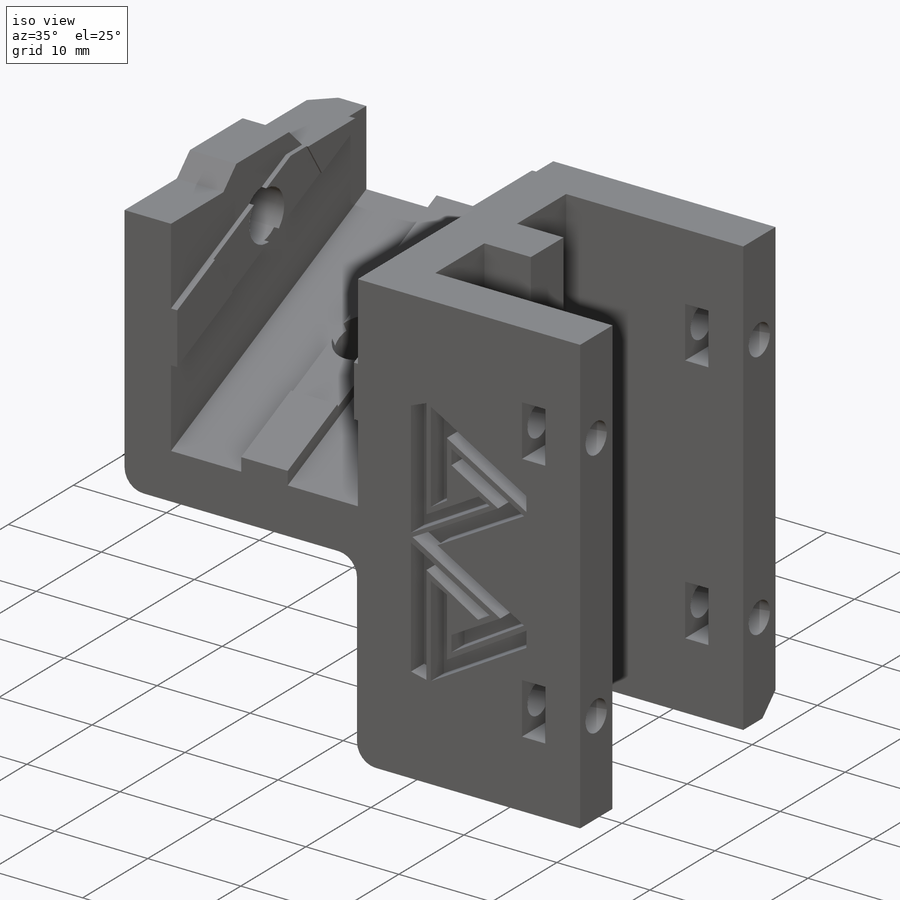
[diagram: iso view]
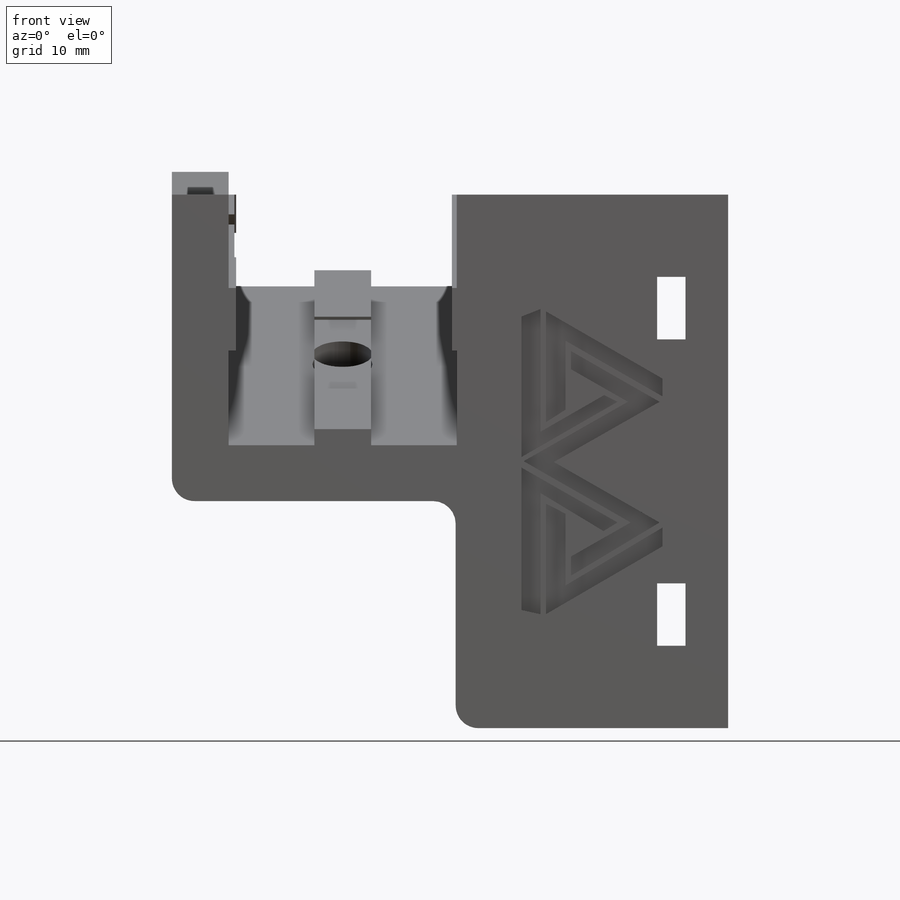
[diagram: front view]
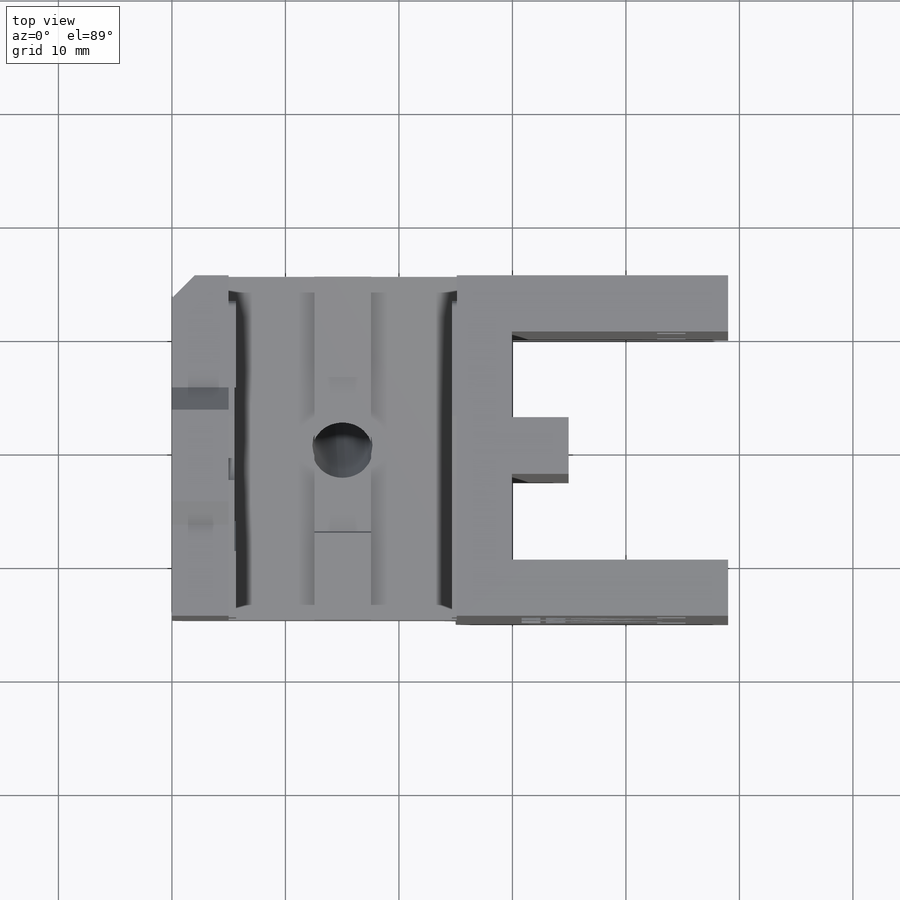
[diagram: top view]
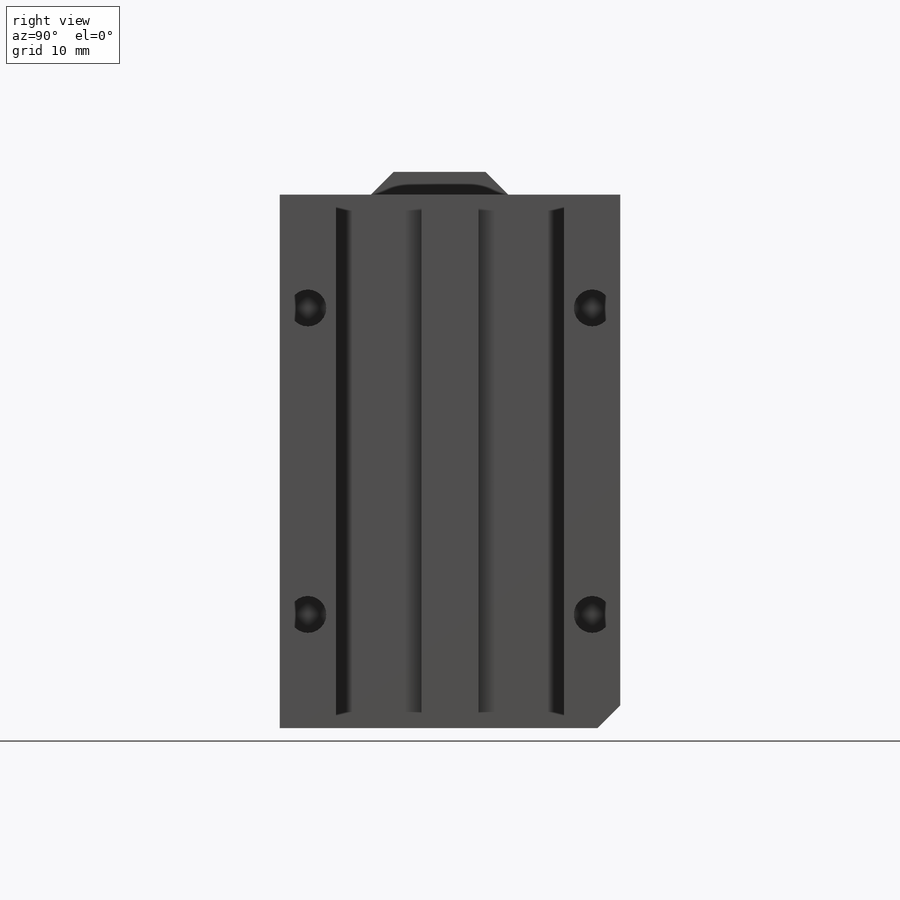
[diagram: right view]
SOLIDWORKS PART (.sldprt)
format: sldprt  version: not decoded by parser v0  size: 731,648 bytes
history: native  units: mm
features: sketch x19, cut_extrude x14, fillet x5, extrude x3, plane x3, chamfer x3, material x1, mirror x1 (+13 scaffold rows collapsed)
feature tree (62):
  scaffold x13  (default folders/planes/origin — collapsed)
  material  "Material <not specified>"
  sketch  "Sketch1"  dims[D1=30.0mm D2=30.0mm]
  extrude  "Boss-Extrude1"  Depth=50mm
  sketch  "Sketch2"  dims[D1=20.1mm D2=20.1mm D3=5.0mm D4=2.5mm D5=5.0mm]
  cut_extrude  "Cut-Extrude1"  [1 undecoded]
  sketch  "Sketch3"  dims[D1=6.0mm]
  cut_extrude  "Cut-Extrude2"  [1 undecoded]
  sketch  "Sketch5"  dims[D1=30.0mm]
  extrude  "Boss-Extrude2"  Depth=25mm
  sketch  "Sketch6"  dims[c1.D1=~42.426407mm c2.D1=65.0deg]
  plane  "45 Angle plane"
  sketch  "Sketch7"  dims[D1=20.1mm D2=20.1mm D3=5.0mm D4=5.0mm D5=2.5mm D6=5.0mm D7=5.0mm D8=5.0mm D9=2.5mm D10=9.85mm]
  cut_extrude  "45 degree extrusion cut"  [1 undecoded]
  sketch  "Sketch11"  dims[D5=3.25mm D6=3.25mm D7=3.25mm D8=3.25mm D1=10.0mm D2=10.0mm D3=13.0mm D4=13.0mm D9=4.95mm]
  cut_extrude  "Cut-Extrude7"  Depth=10mm
  chamfer  "Chamfer1"  Distance=2mm Angle=45deg
  fillet  "Fillet1"  Radius=2mm
  sketch  "Sketch16"  dims[D1=5.35mm]
  cut_extrude  "Cut-Extrude10"  Depth=10mm
  plane  "Plane1"  Offset=25mm
  sketch  "Sketch18"  dims[c1.D1=~15.010781mm c2.D1=~68.853804deg c3.D1=8.0mm c3.D2=15.0mm c3.D3=7.5mm c3.D4=4.0mm]
  cut_extrude  "Cut-Extrude11"  Depth=19mm
  fillet  "Fillet2"  Radius=0.5mm
  fillet  "Fillet3"  Radius=0.5mm
  sketch  "Sketch19"  dims[D1=3.0mm]
  cut_extrude  "Cut-Extrude12"  [1 undecoded]
  sketch  "Sketch20"
  cut_extrude  "Cut-Extrude13"  Depth=15mm
  sketch  "Sketch21"
  plane  "Plane2"
  sketch  "Sketch22"  dims[D1=5.3mm]
  cut_extrude  "Cut-Extrude14"  [1 undecoded]
  sketch  "Sketch23"  dims[D1=12.0mm]
  cut_extrude  "Cut-Extrude15"  Depth=5mm
  sketch  "Sketch24"  dims[D1=15.0mm D2=5.0mm]
  cut_extrude  "Cut-Extrude16"  Depth=4mm
  sketch  "Sketch25"
  extrude  "Boss-Extrude3"  Depth=2mm
  chamfer  "Chamfer2"  Distance=2mm Angle=45deg
  sketch  "Sketch26"  dims[D1=10.0mm D2=5.0mm D3=10.0mm D4=5.0mm D5=5.5mm D6=2.5mm D7=2.5mm D8=5.5mm]
  cut_extrude  "Cut-Extrude17"  [1 undecoded]
  fillet  "Fillet4"  Radius=0.5mm
  sketch  "Mobious Logo"
  cut_extrude  "Cut-Extrude18"  Depth=2mm
  chamfer  "Chamfer3"  Distance=2mm Angle=45deg
  fillet  "Fillet5"  Radius=0.2mm
  sketch  "Sketch29"
  cut_extrude  "Cut-Extrude21"  [1 undecoded]
  mirror  "Mirror1"
decode coverage: 32 of 45 modeling features carry decoded parameters
note: ~ marks probable driven/reference dimensions
note: 7 parameter values undecoded
summary: no parameter record found for 7 features
note: suppression state not decoded; provenance and decode notes live in map.json
